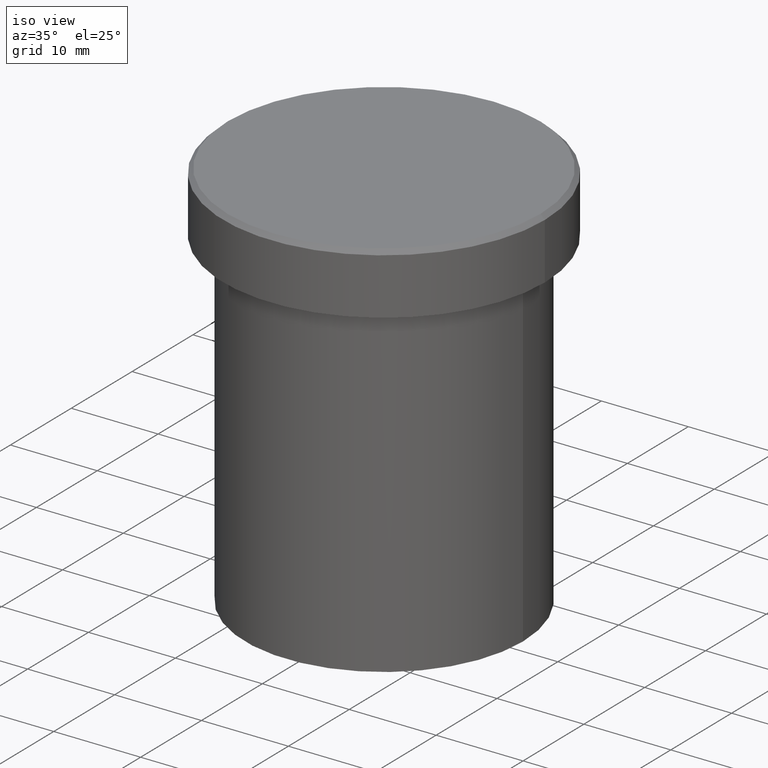
[diagram: clean part render]
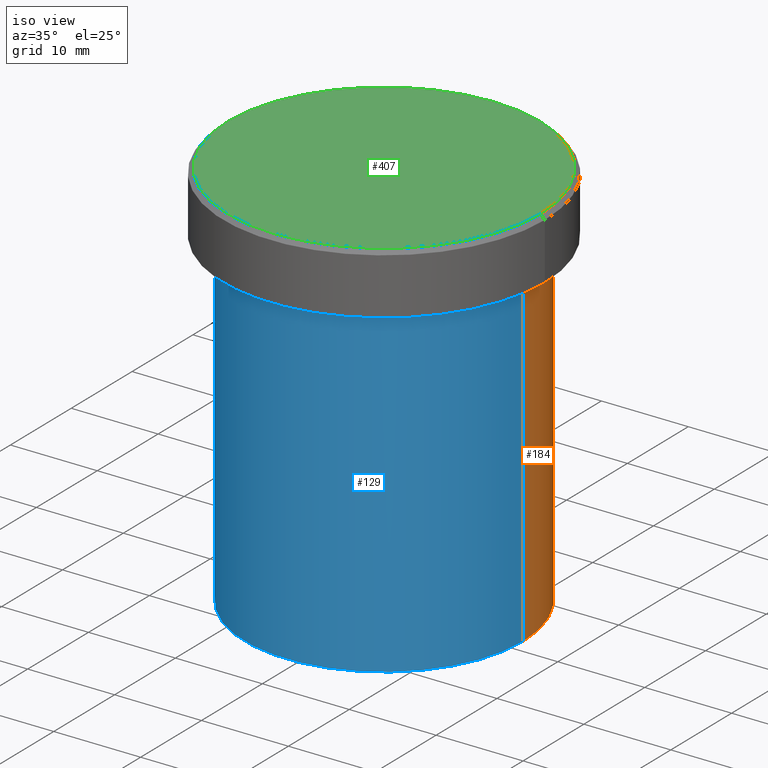
[diagram: same view with three faces highlighted in distinct colors, each labeled with its STEP entity id]
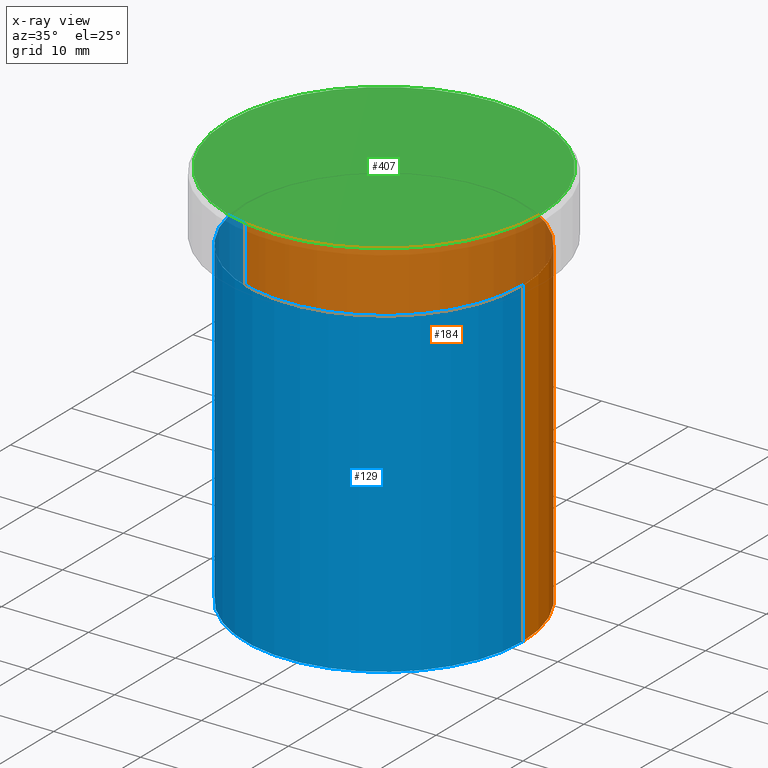
[diagram: x-ray of the same camera — body ghosted, the three highlighted faces saturated]
A machine part, iso view with three faces highlighted in distinct colors.
The next image is the same camera in x-ray (body ghosted, the three faces saturated) — at least one of them is partly hidden behind the body in this view.
Their STEP definitions:

[orange] entity #184 — the highlighted cylindrical surface (partial cylindrical patch) has radius 16 mm, axis along (-0, -0, 1).
#23 = ORIENTED_EDGE ( 'NONE', *, *, #335, .T. ) ;
#38 = EDGE_CURVE ( 'NONE', #301, #243, #109, .T. ) ;
#79 = CARTESIAN_POINT ( 'NONE',  ( 0.000000000000000000, 0.000000000000000000, -45.00000000000000000 ) ) ;
#94 = CARTESIAN_POINT ( 'NONE',  ( 16.00000000000000000, 0.000000000000000000, -45.00000000000000000 ) ) ;
#95 = VERTEX_POINT ( 'NONE', #94 ) ;
#99 = VECTOR ( 'NONE', #116, 1000.000000000000000 ) ;
#107 = CIRCLE ( 'NONE', #315, 16.00000000000000000 ) ;
#109 = LINE ( 'NONE', #144, #213 ) ;
#116 = DIRECTION ( 'NONE',  ( -0.000000000000000000, -0.000000000000000000, 1.000000000000000000 ) ) ;
#117 = CARTESIAN_POINT ( 'NONE',  ( -16.00000000000000000, 1.959434878635765131E-15, -45.00000000000000000 ) ) ;
#133 = CARTESIAN_POINT ( 'NONE',  ( 0.000000000000000000, 0.000000000000000000, 0.000000000000000000 ) ) ;
#144 = CARTESIAN_POINT ( 'NONE',  ( -16.00000000000000000, 1.959434878635765131E-15, 0.000000000000000000 ) ) ;
#160 = DIRECTION ( 'NONE',  ( -0.000000000000000000, -0.000000000000000000, 1.000000000000000000 ) ) ;
#164 = CARTESIAN_POINT ( 'NONE',  ( -16.00000000000000000, 1.959434878635765131E-15, -8.000000000000000000 ) ) ;
#177 = ORIENTED_EDGE ( 'NONE', *, *, #38, .T. ) ;
#184 = ADVANCED_FACE ( 'NONE', ( #220 ), #237, .T. ) ;
#190 = DIRECTION ( 'NONE',  ( -0.000000000000000000, -0.000000000000000000, 1.000000000000000000 ) ) ;
#207 = DIRECTION ( 'NONE',  ( -0.000000000000000000, -0.000000000000000000, 1.000000000000000000 ) ) ;
#213 = VECTOR ( 'NONE', #207, 1000.000000000000000 ) ;
#220 = FACE_OUTER_BOUND ( 'NONE', #373, .T. ) ;
#229 = DIRECTION ( 'NONE',  ( 1.000000000000000000, 0.000000000000000000, 0.000000000000000000 ) ) ;
#233 = EDGE_CURVE ( 'NONE', #276, #243, #239, .T. ) ;
#235 = DIRECTION ( 'NONE',  ( 1.000000000000000000, 0.000000000000000000, 0.000000000000000000 ) ) ;
#237 = CYLINDRICAL_SURFACE ( 'NONE', #262, 16.00000000000000000 ) ;
#239 = CIRCLE ( 'NONE', #272, 16.00000000000000000 ) ;
#243 = VERTEX_POINT ( 'NONE', #164 ) ;
#259 = DIRECTION ( 'NONE',  ( -0.000000000000000000, -0.000000000000000000, 1.000000000000000000 ) ) ;
#262 = AXIS2_PLACEMENT_3D ( 'NONE', #133, #160, #235 ) ;
#265 = CARTESIAN_POINT ( 'NONE',  ( 16.00000000000000000, 0.000000000000000000, 0.000000000000000000 ) ) ;
#272 = AXIS2_PLACEMENT_3D ( 'NONE', #300, #190, #229 ) ;
#276 = VERTEX_POINT ( 'NONE', #389 ) ;
#300 = CARTESIAN_POINT ( 'NONE',  ( 0.000000000000000000, 0.000000000000000000, -8.000000000000000000 ) ) ;
#301 = VERTEX_POINT ( 'NONE', #117 ) ;
#303 = ORIENTED_EDGE ( 'NONE', *, *, #233, .F. ) ;
#315 = AXIS2_PLACEMENT_3D ( 'NONE', #79, #259, #353 ) ;
#317 = EDGE_CURVE ( 'NONE', #95, #276, #350, .T. ) ;
#335 = EDGE_CURVE ( 'NONE', #95, #301, #107, .T. ) ;
#350 = LINE ( 'NONE', #265, #99 ) ;
#353 = DIRECTION ( 'NONE',  ( 1.000000000000000000, 0.000000000000000000, 0.000000000000000000 ) ) ;
#373 = EDGE_LOOP ( 'NONE', ( #23, #177, #303, #393 ) ) ;
#389 = CARTESIAN_POINT ( 'NONE',  ( 16.00000000000000000, 0.000000000000000000, -8.000000000000000000 ) ) ;
#393 = ORIENTED_EDGE ( 'NONE', *, *, #317, .F. ) ;

[blue] entity #129 — the highlighted cylindrical surface (partial cylindrical patch) has radius 16 mm, axis along (-0, -0, 1).
#24 = AXIS2_PLACEMENT_3D ( 'NONE', #294, #258, #205 ) ;
#38 = EDGE_CURVE ( 'NONE', #301, #243, #109, .T. ) ;
#71 = DIRECTION ( 'NONE',  ( 1.000000000000000000, 0.000000000000000000, 0.000000000000000000 ) ) ;
#94 = CARTESIAN_POINT ( 'NONE',  ( 16.00000000000000000, 0.000000000000000000, -45.00000000000000000 ) ) ;
#95 = VERTEX_POINT ( 'NONE', #94 ) ;
#99 = VECTOR ( 'NONE', #116, 1000.000000000000000 ) ;
#103 = EDGE_LOOP ( 'NONE', ( #381, #336, #110, #269 ) ) ;
#109 = LINE ( 'NONE', #144, #213 ) ;
#110 = ORIENTED_EDGE ( 'NONE', *, *, #317, .T. ) ;
#116 = DIRECTION ( 'NONE',  ( -0.000000000000000000, -0.000000000000000000, 1.000000000000000000 ) ) ;
#117 = CARTESIAN_POINT ( 'NONE',  ( -16.00000000000000000, 1.959434878635765131E-15, -45.00000000000000000 ) ) ;
#129 = ADVANCED_FACE ( 'NONE', ( #316 ), #278, .T. ) ;
#136 = DIRECTION ( 'NONE',  ( -0.000000000000000000, -0.000000000000000000, 1.000000000000000000 ) ) ;
#144 = CARTESIAN_POINT ( 'NONE',  ( -16.00000000000000000, 1.959434878635765131E-15, 0.000000000000000000 ) ) ;
#158 = CIRCLE ( 'NONE', #24, 16.00000000000000000 ) ;
#164 = CARTESIAN_POINT ( 'NONE',  ( -16.00000000000000000, 1.959434878635765131E-15, -8.000000000000000000 ) ) ;
#168 = CARTESIAN_POINT ( 'NONE',  ( 0.000000000000000000, 0.000000000000000000, 0.000000000000000000 ) ) ;
#205 = DIRECTION ( 'NONE',  ( 1.000000000000000000, 0.000000000000000000, 0.000000000000000000 ) ) ;
#207 = DIRECTION ( 'NONE',  ( -0.000000000000000000, -0.000000000000000000, 1.000000000000000000 ) ) ;
#213 = VECTOR ( 'NONE', #207, 1000.000000000000000 ) ;
#224 = DIRECTION ( 'NONE',  ( 1.000000000000000000, 0.000000000000000000, 0.000000000000000000 ) ) ;
#232 = AXIS2_PLACEMENT_3D ( 'NONE', #168, #248, #71 ) ;
#243 = VERTEX_POINT ( 'NONE', #164 ) ;
#248 = DIRECTION ( 'NONE',  ( -0.000000000000000000, -0.000000000000000000, 1.000000000000000000 ) ) ;
#250 = EDGE_CURVE ( 'NONE', #301, #95, #379, .T. ) ;
#258 = DIRECTION ( 'NONE',  ( -0.000000000000000000, -0.000000000000000000, 1.000000000000000000 ) ) ;
#265 = CARTESIAN_POINT ( 'NONE',  ( 16.00000000000000000, 0.000000000000000000, 0.000000000000000000 ) ) ;
#269 = ORIENTED_EDGE ( 'NONE', *, *, #391, .F. ) ;
#276 = VERTEX_POINT ( 'NONE', #389 ) ;
#278 = CYLINDRICAL_SURFACE ( 'NONE', #232, 16.00000000000000000 ) ;
#286 = CARTESIAN_POINT ( 'NONE',  ( 0.000000000000000000, 0.000000000000000000, -45.00000000000000000 ) ) ;
#294 = CARTESIAN_POINT ( 'NONE',  ( 0.000000000000000000, 0.000000000000000000, -8.000000000000000000 ) ) ;
#301 = VERTEX_POINT ( 'NONE', #117 ) ;
#316 = FACE_OUTER_BOUND ( 'NONE', #103, .T. ) ;
#317 = EDGE_CURVE ( 'NONE', #95, #276, #350, .T. ) ;
#323 = AXIS2_PLACEMENT_3D ( 'NONE', #286, #136, #224 ) ;
#336 = ORIENTED_EDGE ( 'NONE', *, *, #250, .T. ) ;
#350 = LINE ( 'NONE', #265, #99 ) ;
#379 = CIRCLE ( 'NONE', #323, 16.00000000000000000 ) ;
#381 = ORIENTED_EDGE ( 'NONE', *, *, #38, .F. ) ;
#389 = CARTESIAN_POINT ( 'NONE',  ( 16.00000000000000000, 0.000000000000000000, -8.000000000000000000 ) ) ;
#391 = EDGE_CURVE ( 'NONE', #243, #276, #158, .T. ) ;

[green] entity #407 — the highlighted planar face has unit normal (0, -0, 1).
#5 = DIRECTION ( 'NONE',  ( 1.000000000000000000, 0.000000000000000000, 0.000000000000000000 ) ) ;
#8 = FACE_OUTER_BOUND ( 'NONE', #313, .T. ) ;
#45 = DIRECTION ( 'NONE',  ( -0.000000000000000000, -0.000000000000000000, 1.000000000000000000 ) ) ;
#58 = VERTEX_POINT ( 'NONE', #306 ) ;
#62 = CIRCLE ( 'NONE', #387, 18.00000000000001066 ) ;
#74 = AXIS2_PLACEMENT_3D ( 'NONE', #75, #45, #171 ) ;
#75 = CARTESIAN_POINT ( 'NONE',  ( 0.000000000000000000, 0.000000000000000000, 0.000000000000000000 ) ) ;
#76 = CARTESIAN_POINT ( 'NONE',  ( 18.00000000000001066, 2.234980408443920004E-15, 0.000000000000000000 ) ) ;
#101 = ORIENTED_EDGE ( 'NONE', *, *, #399, .T. ) ;
#138 = PLANE ( 'NONE',  #341 ) ;
#167 = DIRECTION ( 'NONE',  ( 0.000000000000000000, -0.000000000000000000, 1.000000000000000000 ) ) ;
#171 = DIRECTION ( 'NONE',  ( 1.000000000000000000, 0.000000000000000000, 0.000000000000000000 ) ) ;
#223 = CARTESIAN_POINT ( 'NONE',  ( 0.000000000000000000, 0.000000000000000000, 0.000000000000000000 ) ) ;
#241 = VERTEX_POINT ( 'NONE', #76 ) ;
#253 = CARTESIAN_POINT ( 'NONE',  ( 0.000000000000000000, 0.000000000000000000, 0.000000000000000000 ) ) ;
#282 = DIRECTION ( 'NONE',  ( -0.000000000000000000, -0.000000000000000000, 1.000000000000000000 ) ) ;
#289 = DIRECTION ( 'NONE',  ( 1.000000000000000000, 0.000000000000000000, 0.000000000000000000 ) ) ;
#293 = CIRCLE ( 'NONE', #74, 18.00000000000001066 ) ;
#306 = CARTESIAN_POINT ( 'NONE',  ( -18.00000000000001066, 0.000000000000000000, 0.000000000000000000 ) ) ;
#313 = EDGE_LOOP ( 'NONE', ( #408, #101 ) ) ;
#341 = AXIS2_PLACEMENT_3D ( 'NONE', #253, #167, #5 ) ;
#382 = EDGE_CURVE ( 'NONE', #58, #241, #293, .T. ) ;
#387 = AXIS2_PLACEMENT_3D ( 'NONE', #223, #282, #289 ) ;
#399 = EDGE_CURVE ( 'NONE', #241, #58, #62, .T. ) ;
#407 = ADVANCED_FACE ( 'NONE', ( #8 ), #138, .T. ) ;
#408 = ORIENTED_EDGE ( 'NONE', *, *, #382, .T. ) ;